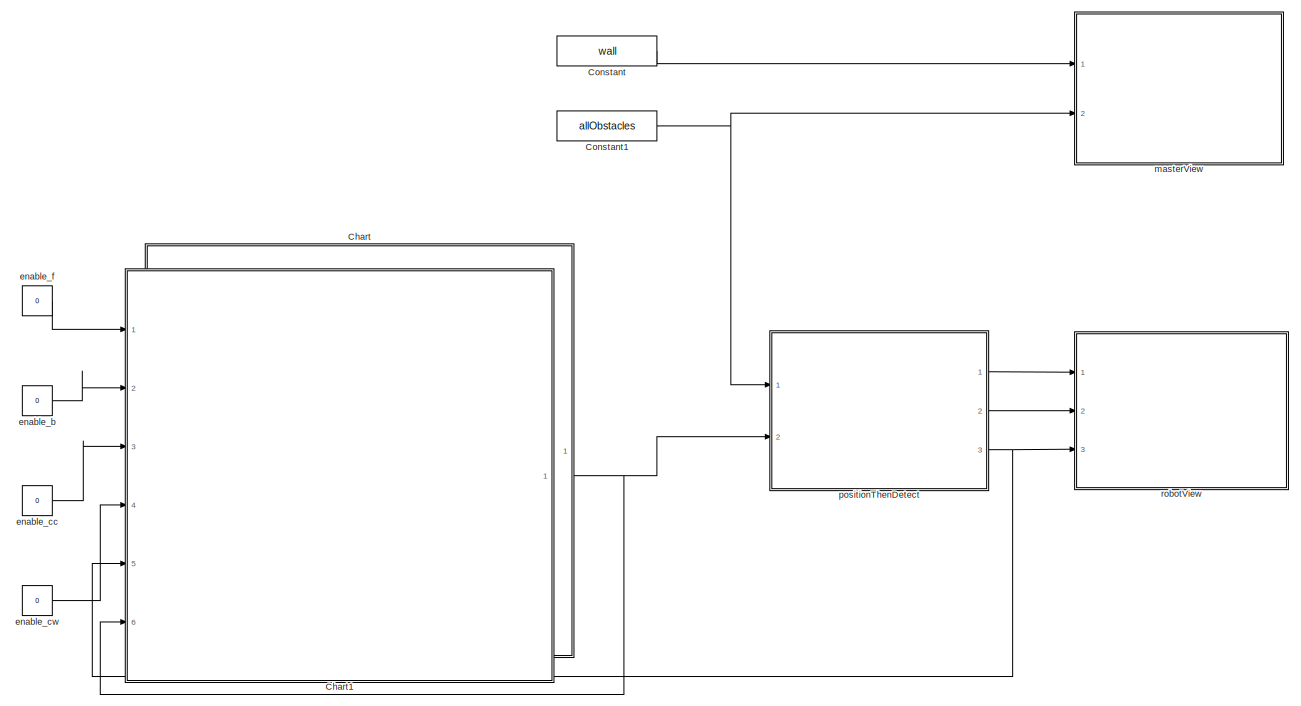
[diagram: root canvas - part 1/2, most of the canvas]
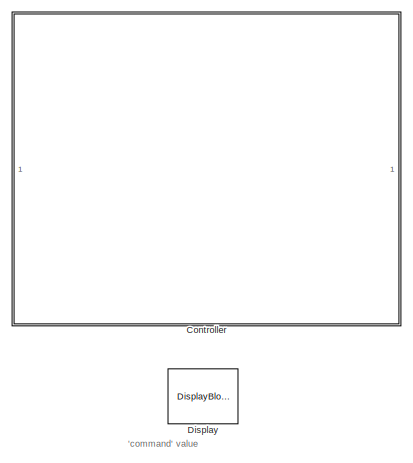
[diagram: root canvas - part 2/2, middle left region]
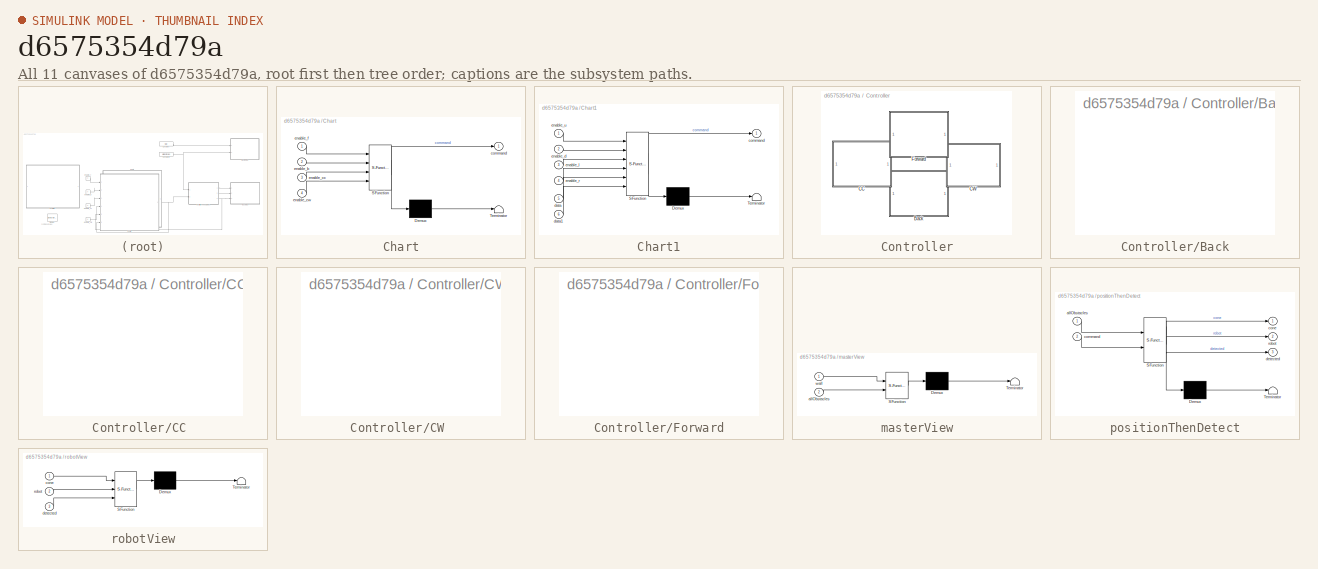
[diagram: thumbnail index - all 11 canvases of the model, root first then tree order]
MODEL slx_d6575354d79a
KIND model
CONFIG AbsTol = auto
CONFIG EnableMultiTasking = off
CONFIG FixedStep = auto
CONFIG InitFcn = run('initArena.m')
CONFIG MaxStep = auto
CONFIG MinStep = auto
CONFIG RelTol = 1e-3
CONFIG SampleTimeConstraint = Unconstrained
CONFIG Solver = VariableStepAuto
CONFIG SolverName = VariableStepAuto
CONFIG StartTime = 0.0
CONFIG StopTime = inf
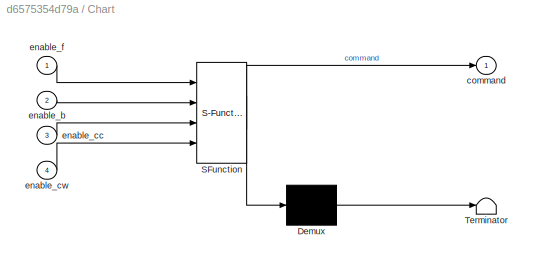
BLOCK [SubSystem] Chart
  Commented = on
  ErrorFcn = Stateflow.Translate.translate
  PermitHierarchicalResolution = ExplicitOnly
  Ports = [4, 1]
  RequestExecContextInheritance = off
  SFBlockType = Chart
  TreatAsAtomicUnit = on
BLOCK [Demux] Chart/ Demux 
  Outputs = 1
  Ports = [1, 1]
BLOCK [S-Function] Chart/ SFunction 
  EnableBusSupport = on
  FunctionName = sf_sfun
  PortCounts = [4 2]
  Ports = [4, 2]
  SFcnIsStateOwnerBlock = off
  SFunctionDeploymentMode = off
  Tag = Stateflow S-Function testNoCollision 3
BLOCK [Terminator] Chart/ Terminator 
BLOCK [Outport] Chart/command
  IconDisplay = Port number
BLOCK [Inport] Chart/enable_b
  IconDisplay = Port number
  Port = 2
BLOCK [Inport] Chart/enable_cc
  IconDisplay = Port number
  Port = 3
BLOCK [Inport] Chart/enable_cw
  IconDisplay = Port number
  Port = 4
BLOCK [Inport] Chart/enable_f
  IconDisplay = Port number
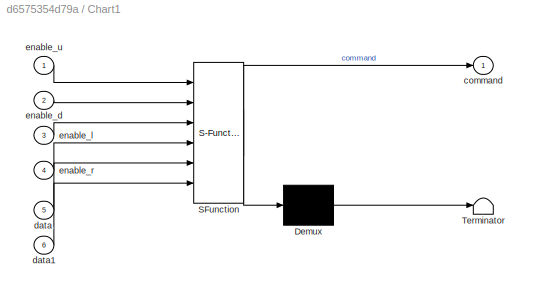
BLOCK [SubSystem] Chart1
  ErrorFcn = Stateflow.Translate.translate
  PermitHierarchicalResolution = ExplicitOnly
  Ports = [6, 1]
  RequestExecContextInheritance = off
  SFBlockType = Chart
  TreatAsAtomicUnit = on
BLOCK [Demux] Chart1/ Demux 
  Outputs = 1
  Ports = [1, 1]
BLOCK [S-Function] Chart1/ SFunction 
  EnableBusSupport = on
  FunctionName = sf_sfun
  PortCounts = [6 2]
  Ports = [6, 2]
  SFcnIsStateOwnerBlock = off
  SFunctionDeploymentMode = off
  Tag = Stateflow S-Function testNoCollision 1
BLOCK [Terminator] Chart1/ Terminator 
BLOCK [Outport] Chart1/command
  IconDisplay = Port number
BLOCK [Inport] Chart1/data
  IconDisplay = Port number
  Port = 5
BLOCK [Inport] Chart1/data1
  IconDisplay = Port number
  Port = 6
BLOCK [Inport] Chart1/enable_d
  IconDisplay = Port number
  Port = 2
BLOCK [Inport] Chart1/enable_l
  IconDisplay = Port number
  Port = 3
BLOCK [Inport] Chart1/enable_r
  IconDisplay = Port number
  Port = 4
BLOCK [Inport] Chart1/enable_u
  IconDisplay = Port number
BLOCK [Constant] Constant
  Value = wall
BLOCK [Constant] Constant1
  Value = allObstacles
BLOCK [SubSystem] Controller
  Ports = []
  RequestExecContextInheritance = off
BLOCK [SubSystem] Controller/Back
  DialogController = hmiCreateDDGDialog
  IsWebBlock = on
  Ports = []
  RequestExecContextInheritance = off
BLOCK [SubSystem] Controller/CC 
  DialogController = hmiCreateDDGDialog
  IsWebBlock = on
  Ports = []
  RequestExecContextInheritance = off
BLOCK [SubSystem] Controller/CW 
  DialogController = hmiCreateDDGDialog
  IsWebBlock = on
  Ports = []
  RequestExecContextInheritance = off
BLOCK [SubSystem] Controller/Forward
  DialogController = hmiCreateDDGDialog
  IsWebBlock = on
  Ports = []
  RequestExecContextInheritance = off
BLOCK [DisplayBlock] Display
  LabelPosition = Hide
  WebBlockId = 14
BLOCK [Constant] enable_b 
  Value = 0
BLOCK [Constant] enable_cc 
  Value = 0
BLOCK [Constant] enable_cw 
  Value = 0
BLOCK [Constant] enable_f 
  Value = 0
BLOCK [SubSystem] masterView
  ErrorFcn = Stateflow.Translate.translate
  PermitHierarchicalResolution = ExplicitOnly
  Ports = [2]
  RequestExecContextInheritance = off
  SFBlockType = MATLAB Function
  TreatAsAtomicUnit = on
BLOCK [Demux] masterView/ Demux 
  Outputs = 1
  Ports = [1, 1]
BLOCK [S-Function] masterView/ SFunction 
  EnableBusSupport = on
  FunctionName = sf_sfun
  PortCounts = [2 1]
  Ports = [2, 1]
  SFcnIsStateOwnerBlock = off
  SFunctionDeploymentMode = off
  Tag = Stateflow S-Function testNoCollision 4
BLOCK [Terminator] masterView/ Terminator 
BLOCK [Inport] masterView/allObstacles
  IconDisplay = Port number
  Port = 2
BLOCK [Inport] masterView/wall
  IconDisplay = Port number
BLOCK [SubSystem] positionThenDetect
  ErrorFcn = Stateflow.Translate.translate
  PermitHierarchicalResolution = ExplicitOnly
  Ports = [2, 3]
  RequestExecContextInheritance = off
  SFBlockType = MATLAB Function
  TreatAsAtomicUnit = on
BLOCK [Demux] positionThenDetect/ Demux 
  Outputs = 1
  Ports = [1, 1]
BLOCK [S-Function] positionThenDetect/ SFunction 
  EnableBusSupport = on
  FunctionName = sf_sfun
  PortCounts = [2 4]
  Ports = [2, 4]
  SFcnIsStateOwnerBlock = off
  SFunctionDeploymentMode = off
  Tag = Stateflow S-Function testNoCollision 2
BLOCK [Terminator] positionThenDetect/ Terminator 
BLOCK [Inport] positionThenDetect/allObstacles
  IconDisplay = Port number
BLOCK [Inport] positionThenDetect/command
  IconDisplay = Port number
  Port = 2
BLOCK [Outport] positionThenDetect/cone
  IconDisplay = Port number
BLOCK [Outport] positionThenDetect/detected
  IconDisplay = Port number
  Port = 3
BLOCK [Outport] positionThenDetect/robot
  IconDisplay = Port number
  Port = 2
BLOCK [SubSystem] robotView
  ErrorFcn = Stateflow.Translate.translate
  PermitHierarchicalResolution = ExplicitOnly
  Ports = [3]
  RequestExecContextInheritance = off
  SFBlockType = MATLAB Function
  TreatAsAtomicUnit = on
BLOCK [Demux] robotView/ Demux 
  Outputs = 1
  Ports = [1, 1]
BLOCK [S-Function] robotView/ SFunction 
  EnableBusSupport = on
  FunctionName = sf_sfun
  PortCounts = [3 1]
  Ports = [3, 1]
  SFcnIsStateOwnerBlock = off
  SFunctionDeploymentMode = off
  Tag = Stateflow S-Function testNoCollision 5
BLOCK [Terminator] robotView/ Terminator 
BLOCK [Inport] robotView/cone
  IconDisplay = Port number
BLOCK [Inport] robotView/detected
  IconDisplay = Port number
  Port = 3
BLOCK [Inport] robotView/robot
  IconDisplay = Port number
  Port = 2
ANNOTATION (root): 'command' value
NET Chart1:1 -> Chart1:6, positionThenDetect:2
NET Constant1:1 -> masterView:2, positionThenDetect:1
LINE Constant:1 -> masterView:1
LINE enable_b :1 -> Chart1:2
LINE enable_cc :1 -> Chart1:3
LINE enable_cw :1 -> Chart1:4
LINE enable_f :1 -> Chart1:1
LINE positionThenDetect:1 -> robotView:1
LINE positionThenDetect:2 -> robotView:2
NET positionThenDetect:3 -> Chart1:5, robotView:3
note: NET lines group one-source signal fan-out (src -> all destinations, sorted); 1:1 wires keep LINE
CHART Chart1 states=21 transitions=45
  STATE_LABEL 'up3\nentry: command = 1'
  STATE_LABEL 'down3\nentry: command = 2'
  STATE_LABEL 'up2\nentry: command=1'
  STATE_LABEL 'left2\nentry: command=3'
  STATE_LABEL 'right2\nentry: command=4'
  STATE_LABEL 'left3\nentry: command = 3'
  STATE_LABEL 'up4\nentry: command = 1'
  STATE_LABEL 'down4\nentry: command = 2'
  STATE_LABEL 'right4\nentry: command = 4'
  STATE_LABEL 'detected_down\nentry: command = 0'
  STATE_LABEL 'detected_right\nentry: command = 0'
  STATE_LABEL 'detected_left\nentry: command = 0'
  STATE_LABEL 'no_input\nentry: command = 0\n'
  STATE_LABEL 'detected_up\nentry: command = 0\n'
  STATE_LABEL 'up\nentry: command = 1'
  STATE_LABEL 'down\nentry: command = 2'
  STATE_LABEL 'left\nentry: command = 3'
  STATE_LABEL 'right\nentry: command = 4'
  STATE_LABEL 'down1 \nentry:command = 2'
  STATE_LABEL 'left1\nentry: command = 3'
  STATE_LABEL 'right_1\nentry: command = 4'
CHART positionThenDetect states=1 transitions=1
  STATE_LABEL 'eML_blk_kernel()'
  STATE_LABEL 'SCRIPT:\nfunction [cone, robot, detected] = positionThenDetect(allObstacles, command)\n    persistent xpos ypos\n    if isempty(xpos)\n        xpos = 2000;\n        ypos = 2000;\n    end\n    \n    % Base vision cone \n    line1 = [0,150,0; 300,450,0;];\n    line2 = [0,150,0; -300,450,0;];\n    line3 = [-300,450,0; 300,450,0;];\n    base_cone = vertcat(line1, line2, line3);\n    \n    % Base robot \n    xbase_ro...<+714ch>'
CHART Chart states=5 transitions=9
  STATE_LABEL 'no_input\nentry: command = 0\n'
  STATE_LABEL 'forward\nentry: command = 1'
  STATE_LABEL 'back\nentry: command = 2'
  STATE_LABEL 'counter_clockwise\nentry: command = 3'
  STATE_LABEL 'clockwise\nentry: command = 4'
CHART masterView states=1 transitions=1
  STATE_LABEL 'eML_blk_kernel()'
  STATE_LABEL "SCRIPT:\nfunction masterView(wall, allObstacles)\n    % Visualize data \n    % hold on\n    grid on\n    grid minor\n    xlim([-800 6600])\n    ylim([-700 4400])\n    plot(wall(:,1), wall(:,2), 'ks-');\n    hold on \n    plot(allObstacles(:,1), allObstacles(:,2), 'bs');\nend"
CHART robotView states=1 transitions=1
  STATE_LABEL 'eML_blk_kernel()'
  STATE_LABEL "SCRIPT:\nfunction robotView(cone, robot, detected) \n     if detected\n        coneColor = 'r.-';\n    else\n        coneColor = 'k.-';\n    end\n    coneFig = plot(cone(:,1), cone(:,2), coneColor); \n    botFig = plot(robot(:,1), robot(:,2), 'k.-');\n    set([coneFig botFig],'LineWidth', 5)\n    hold off\nend\n\n"
